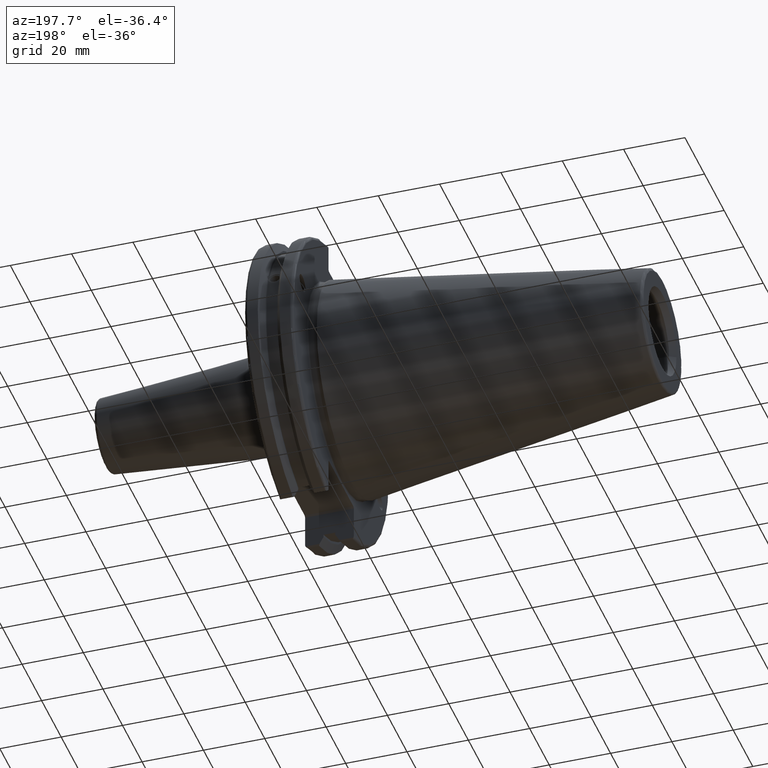
[diagram: clean part render]
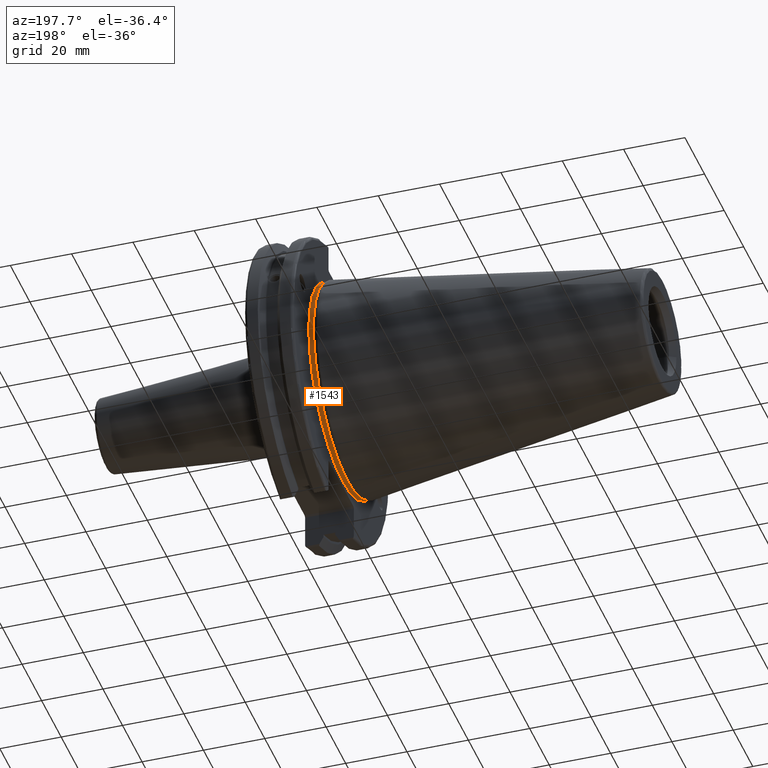
[diagram: same view with one face highlighted and labeled with its STEP entity id]
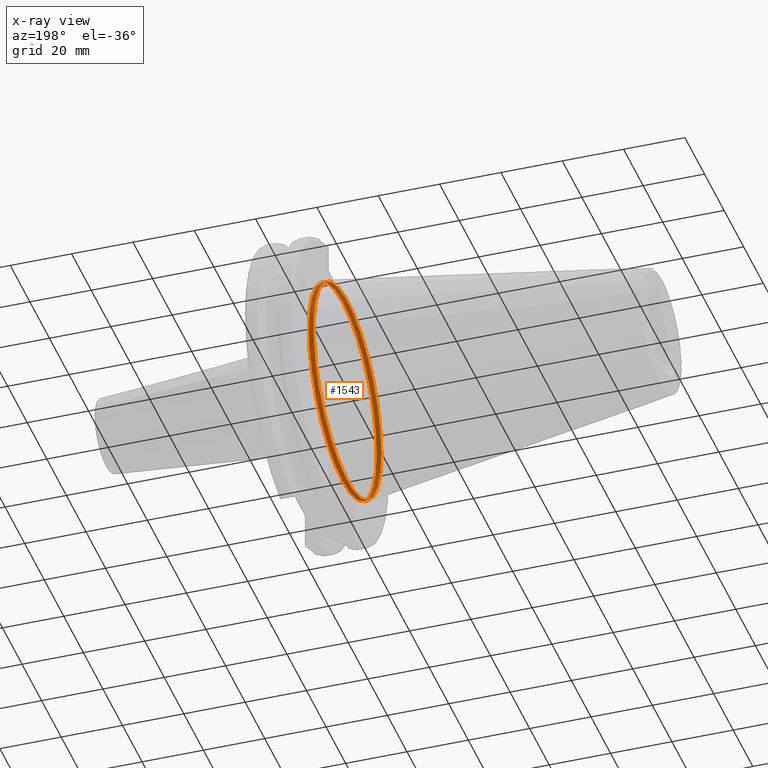
[diagram: x-ray of the same camera — body ghosted, the highlighted face saturated]
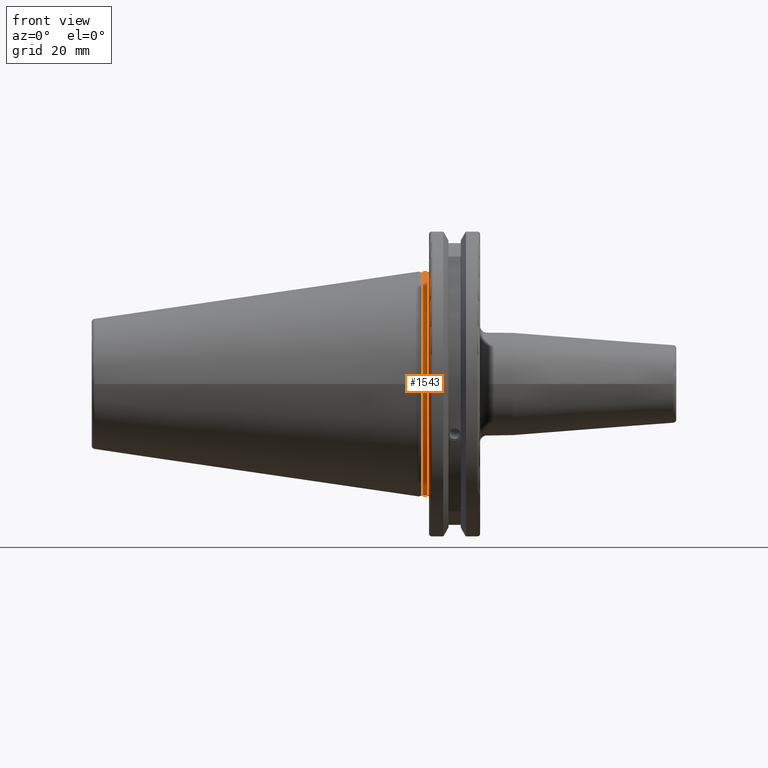
[diagram: same view with one face highlighted and labeled with its STEP entity id]
A machine part, auxiliary view. The second image highlights one B-rep face of the part: STEP entity #1543.
The next image is the same camera in x-ray: the body ghosted, the highlighted face saturated — about 47% of this face is hidden behind the body in this view.
A second angle (front view) of the same face is appended — the face is thin or edge-on in the first view.
In plain terms, the highlighted cylindrical surface (bore or boss wall) has radius 34.625 mm, axis along (1, 0, 0).
Its self-contained STEP definition (entity closure, byte-faithful):
#198=FACE_OUTER_BOUND('',#307,.T.);
#307=EDGE_LOOP('',(#1244,#1245,#1246,#1247,#1248));
#403=CIRCLE('',#1708,34.625);
#406=CIRCLE('',#1711,34.625);
#409=CIRCLE('',#1716,34.625);
#489=LINE('',#2890,#583);
#583=VECTOR('',#2053,34.625);
#722=VERTEX_POINT('',#2856);
#723=VERTEX_POINT('',#2857);
#737=VERTEX_POINT('',#2889);
#908=EDGE_CURVE('',#722,#723,#403,.T.);
#911=EDGE_CURVE('',#723,#722,#406,.T.);
#924=EDGE_CURVE('',#722,#737,#489,.T.);
#925=EDGE_CURVE('',#737,#737,#409,.T.);
#1244=ORIENTED_EDGE('',*,*,#908,.F.);
#1245=ORIENTED_EDGE('',*,*,#924,.T.);
#1246=ORIENTED_EDGE('',*,*,#925,.T.);
#1247=ORIENTED_EDGE('',*,*,#924,.F.);
#1248=ORIENTED_EDGE('',*,*,#911,.F.);
#1488=CYLINDRICAL_SURFACE('',#1715,34.625);
#1543=ADVANCED_FACE('',(#198),#1488,.T.);
#1708=AXIS2_PLACEMENT_3D('',#2858,#2027,#2028);
#1711=AXIS2_PLACEMENT_3D('',#2862,#2033,#2034);
#1715=AXIS2_PLACEMENT_3D('',#2888,#2051,#2052);
#1716=AXIS2_PLACEMENT_3D('',#2891,#2054,#2055);
#2027=DIRECTION('center_axis',(1.,0.,0.));
#2028=DIRECTION('ref_axis',(0.,-1.,1.83697019872103E-16));
#2033=DIRECTION('center_axis',(1.,0.,0.));
#2034=DIRECTION('ref_axis',(0.,-1.,1.83697019872103E-16));
#2051=DIRECTION('center_axis',(1.,0.,0.));
#2052=DIRECTION('ref_axis',(0.,1.,0.));
#2053=DIRECTION('',(-1.,0.,0.));
#2054=DIRECTION('center_axis',(1.,0.,0.));
#2055=DIRECTION('ref_axis',(0.,0.,-1.));
#2856=CARTESIAN_POINT('',(2.675,-34.625,-4.24033954204771E-15));
#2857=CARTESIAN_POINT('',(2.675,-4.24033954204771E-15,34.625));
#2858=CARTESIAN_POINT('Origin',(2.675,0.,0.));
#2862=CARTESIAN_POINT('Origin',(2.675,0.,0.));
#2888=CARTESIAN_POINT('Origin',(2.14730762113532,0.,0.));
#2889=CARTESIAN_POINT('',(1.11961524227064,-34.625,-4.24033954204771E-15));
#2890=CARTESIAN_POINT('',(2.14730762113532,-34.625,-4.24033954204771E-15));
#2891=CARTESIAN_POINT('Origin',(1.11961524227064,0.,0.));